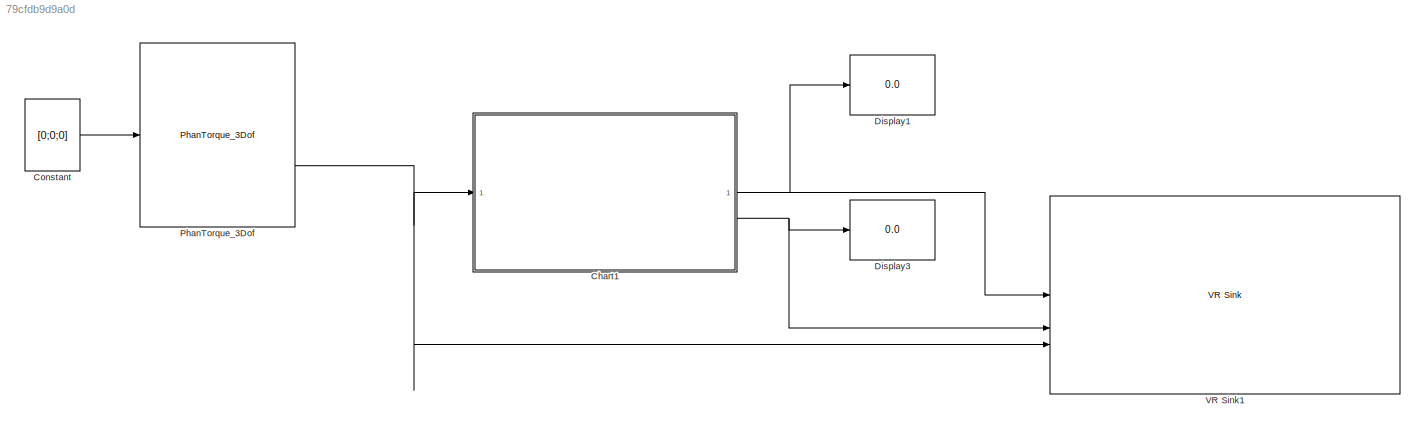
MODEL slx_79cfdb9d9a0d
KIND model
CONFIG AbsTol = auto
CONFIG EnableMultiTasking = off
CONFIG FixedStep = 0.001
CONFIG MaxStep = auto
CONFIG MinStep = auto
CONFIG RelTol = 1e-3
CONFIG SampleTimeConstraint = Unconstrained
CONFIG SolverName = FixedStepDiscrete
CONFIG StartTime = 0.0
CONFIG StopTime = 200
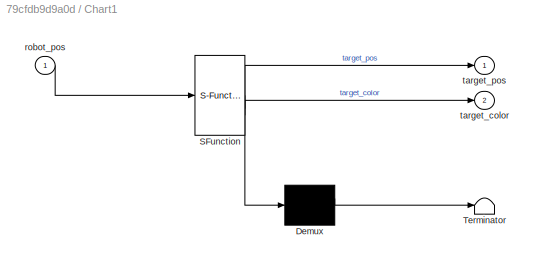
BLOCK [SubSystem] Chart1
  ErrorFcn = Stateflow.Translate.translate
  PermitHierarchicalResolution = ExplicitOnly
  SFBlockType = Chart
  TreatAsAtomicUnit = on
BLOCK [Demux] Chart1/ Demux 
  Outputs = 1
BLOCK [S-Function] Chart1/ SFunction 
  EnableBusSupport = on
  FunctionName = sf_sfun
  PortCounts = [1 3]
  SFcnIsStateOwnerBlock = off
  SFunctionDeploymentMode = off
  Tag = Stateflow S-Function 1
BLOCK [Terminator] Chart1/ Terminator 
BLOCK [Inport] Chart1/robot_pos
BLOCK [Outport] Chart1/target_color
  Port = 2
BLOCK [Outport] Chart1/target_pos
BLOCK [Constant] Constant
  Value = [0;0;0]
  VectorParams1D = off
BLOCK [Display] Display1
  Decimation = 1
BLOCK [Display] Display3
  Decimation = 1
BLOCK [Reference] PhanTorque_3Dof  REF=PhanTorque_3Dof_Library_64Bits/PhanTorque_3Dof
  SourceBlock = PhanTorque_3Dof_Library_64Bits/PhanTorque_3Dof
BLOCK [Reference] VR Sink1  REF=vrlib/VR Sink
  InstantiateOnLoad = on
  SourceBlock = vrlib/VR Sink
  SourceType = Virtual Reality Sink
NET Chart1:1 -> Display1:1, VR Sink1:1
NET Chart1:2 -> Display3:1, VR Sink1:2
LINE Constant:1 -> PhanTorque_3Dof:1
NET PhanTorque_3Dof:2 -> Chart1:1, VR Sink1:3
note: NET lines group one-source signal fan-out (src -> all destinations, sorted); 1:1 wires keep LINE
CHART Chart1 states=6 transitions=9
  STATE_LABEL 'Start\nentry:\nradius = 0.1;\nthreshold = 0.01;\ntarget_color = [0 0 1];\ni = 1;\ntarget_pos = [0; 0; 0];'
  STATE_LABEL 'Finish\n'
  STATE_LABEL 'Target\nentry:\ntarget_color = [1 1 1];\ntarget_pos = [radius*cos(angle); radius*sin(angle); 0];\ndistance_diff = (robot_pos(1,1)-target_pos(1,1))^2 +(robot_pos(2,1)-target_pos(2,1))^2;\ndistance = sqrt(distance_diff);\nduring:\ndistance_diff = (robot_pos(1,1)-target_pos(1,1))^2 +(robot_pos(2,1)-target_pos(2,1))^2;\ndistance = sqrt(distance_diff);'
  STATE_LABEL 'Colour_change_two\nentry:\ntarget_color = [1 0 0];\nduring:\ndistance_diff = (robot_pos(1,1)-target_pos(1,1))^2 +(robot_pos(2,1)-target_pos(2,1))^2;\ndistance = sqrt(distance_diff);'
  STATE_LABEL 'Colour_1\ntarget_color = [1 0 1];\nduring:\ndistance_diff = (robot_pos(1,1)-target_pos(1,1))^2 +(robot_pos(2,1)-target_pos(2,1))^2;\ndistance = sqrt(distance_diff);\n'
  STATE_LABEL 'Hometarget\ntarget_pos = [0; 0; 0];\ntarget_color = [0 0 1];\ndistance_diff =  (robot_pos(1,1)-target_pos(1,1))^2 +(robot_pos(2,1)-target_pos(2,1))^2;\ndistance = sqrt(distance_diff);\nduring:\ndistance_diff =  (robot_pos(1,1)-target_pos(1,1))^2 +(robot_pos(2,1)-target_pos(2,1))^2;\ndistance = sqrt(distance_diff);\n'
CHART  states=0 transitions=0
